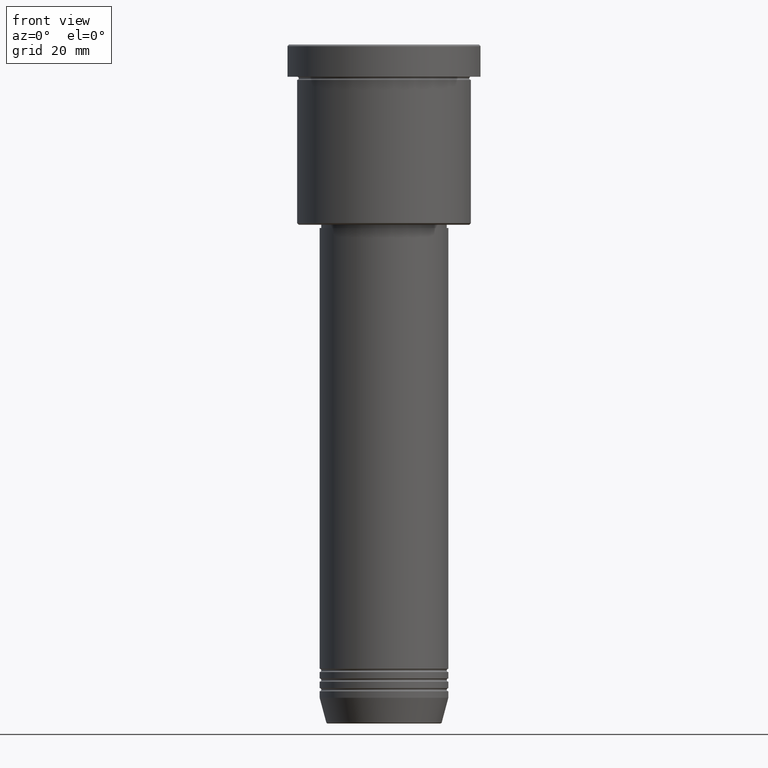
[diagram: clean part render]
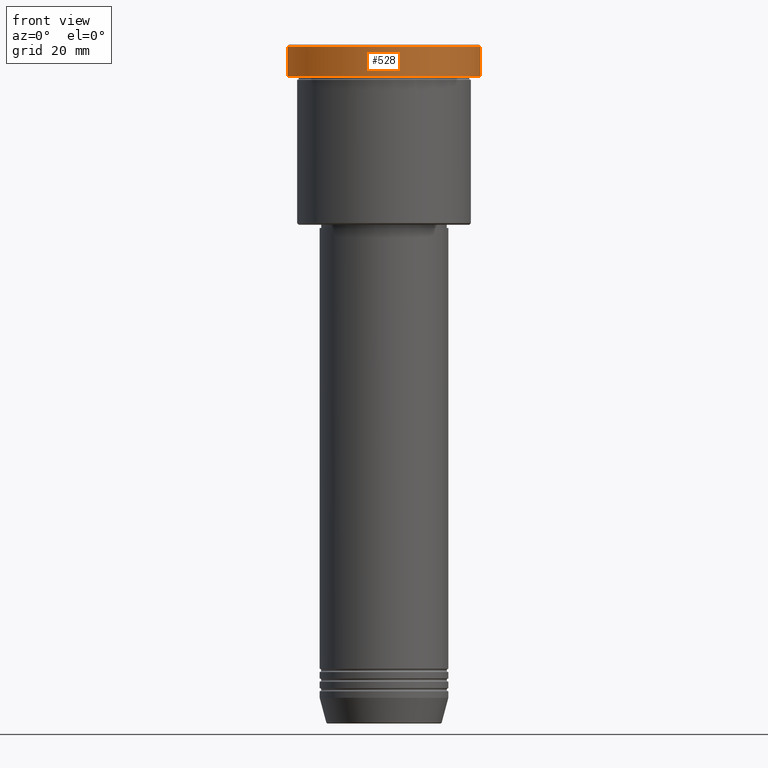
[diagram: same view with one face highlighted and labeled with its STEP entity id]
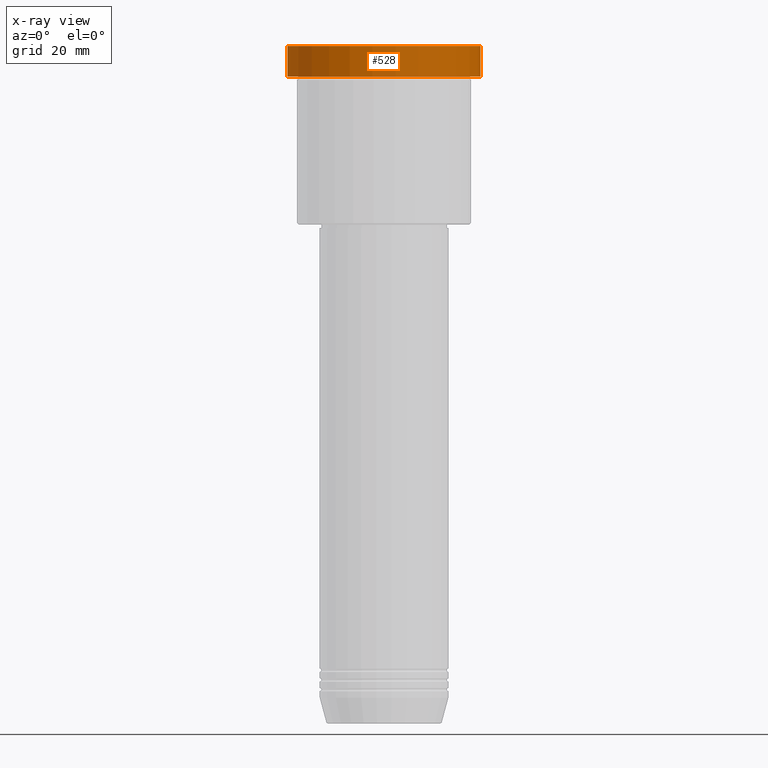
[diagram: x-ray of the same camera — body ghosted, the highlighted face saturated]
A machine part, front view. The second image highlights one B-rep face of the part: STEP entity #528.
The next image is the same camera in x-ray: the body ghosted, the highlighted face saturated — about 0% of this face is hidden behind the body in this view.
In plain terms, the highlighted cylindrical surface (partial cylindrical patch) has radius 30 mm, axis along (-0, -0, 1).
Its self-contained STEP definition (entity closure, byte-faithful):
#4 = VECTOR ( 'NONE', #28, 1000.000000000000000 ) ;
#10 = DIRECTION ( 'NONE',  ( 1.000000000000000000, 0.000000000000000000, 0.000000000000000000 ) ) ;
#28 = DIRECTION ( 'NONE',  ( -0.000000000000000000, -0.000000000000000000, 1.000000000000000000 ) ) ;
#100 = DIRECTION ( 'NONE',  ( -0.000000000000000000, -0.000000000000000000, 1.000000000000000000 ) ) ;
#105 = ORIENTED_EDGE ( 'NONE', *, *, #692, .F. ) ;
#110 = DIRECTION ( 'NONE',  ( 1.000000000000000000, 0.000000000000000000, 0.000000000000000000 ) ) ;
#132 = CARTESIAN_POINT ( 'NONE',  ( -30.00000000000000000, 3.673940397442059178E-15, -0.4999999999999518718 ) ) ;
#136 = VECTOR ( 'NONE', #867, 1000.000000000000000 ) ;
#206 = CARTESIAN_POINT ( 'NONE',  ( 0.000000000000000000, 0.000000000000000000, -0.4999999999999518718 ) ) ;
#225 = EDGE_CURVE ( 'NONE', #251, #591, #233, .T. ) ;
#230 = CARTESIAN_POINT ( 'NONE',  ( 30.00000000000000000, 0.000000000000000000, 0.000000000000000000 ) ) ;
#233 = CIRCLE ( 'NONE', #932, 30.00000000000000000 ) ;
#251 = VERTEX_POINT ( 'NONE', #386 ) ;
#285 = FACE_OUTER_BOUND ( 'NONE', #350, .T. ) ;
#335 = VERTEX_POINT ( 'NONE', #560 ) ;
#350 = EDGE_LOOP ( 'NONE', ( #105, #755, #897, #657 ) ) ;
#386 = CARTESIAN_POINT ( 'NONE',  ( 30.00000000000000000, 0.000000000000000000, -0.4999999999999518718 ) ) ;
#393 = CARTESIAN_POINT ( 'NONE',  ( -30.00000000000000000, 3.673940397442059178E-15, 0.000000000000000000 ) ) ;
#485 = EDGE_CURVE ( 'NONE', #335, #251, #1044, .T. ) ;
#509 = LINE ( 'NONE', #393, #4 ) ;
#528 = ADVANCED_FACE ( 'NONE', ( #285 ), #998, .T. ) ;
#545 = DIRECTION ( 'NONE',  ( -0.000000000000000000, -0.000000000000000000, 1.000000000000000000 ) ) ;
#560 = CARTESIAN_POINT ( 'NONE',  ( 30.00000000000000000, 0.000000000000000000, -9.999999999999992895 ) ) ;
#565 = CARTESIAN_POINT ( 'NONE',  ( 0.000000000000000000, 0.000000000000000000, 0.000000000000000000 ) ) ;
#591 = VERTEX_POINT ( 'NONE', #132 ) ;
#606 = VERTEX_POINT ( 'NONE', #955 ) ;
#655 = CIRCLE ( 'NONE', #767, 30.00000000000000000 ) ;
#657 = ORIENTED_EDGE ( 'NONE', *, *, #225, .T. ) ;
#670 = AXIS2_PLACEMENT_3D ( 'NONE', #565, #100, #10 ) ;
#692 = EDGE_CURVE ( 'NONE', #606, #591, #509, .T. ) ;
#755 = ORIENTED_EDGE ( 'NONE', *, *, #948, .T. ) ;
#761 = DIRECTION ( 'NONE',  ( 0.000000000000000000, 0.000000000000000000, -1.000000000000000000 ) ) ;
#767 = AXIS2_PLACEMENT_3D ( 'NONE', #908, #545, #817 ) ;
#817 = DIRECTION ( 'NONE',  ( 1.000000000000000000, 0.000000000000000000, 0.000000000000000000 ) ) ;
#867 = DIRECTION ( 'NONE',  ( -0.000000000000000000, -0.000000000000000000, 1.000000000000000000 ) ) ;
#897 = ORIENTED_EDGE ( 'NONE', *, *, #485, .T. ) ;
#908 = CARTESIAN_POINT ( 'NONE',  ( 0.000000000000000000, 0.000000000000000000, -9.999999999999992895 ) ) ;
#932 = AXIS2_PLACEMENT_3D ( 'NONE', #206, #761, #110 ) ;
#948 = EDGE_CURVE ( 'NONE', #606, #335, #655, .T. ) ;
#955 = CARTESIAN_POINT ( 'NONE',  ( -30.00000000000000000, 3.673940397442059178E-15, -9.999999999999992895 ) ) ;
#998 = CYLINDRICAL_SURFACE ( 'NONE', #670, 30.00000000000000000 ) ;
#1044 = LINE ( 'NONE', #230, #136 ) ;